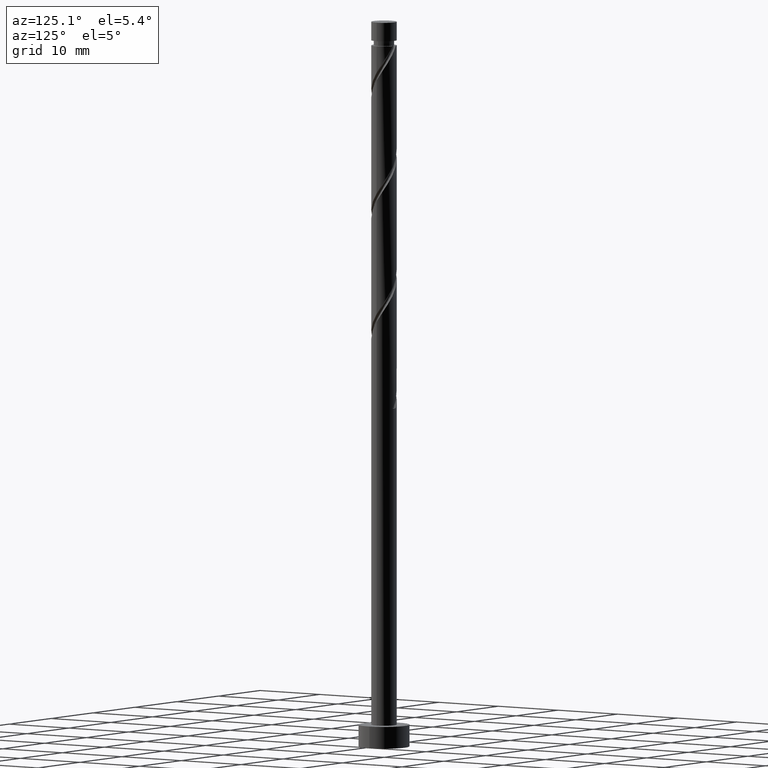
[diagram: clean part render]
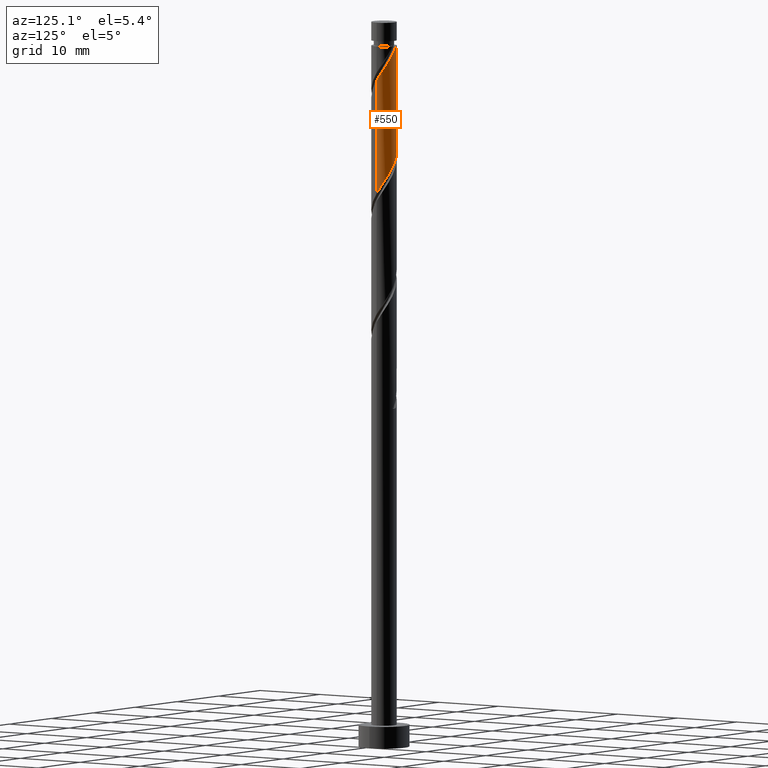
[diagram: same view with one face highlighted and labeled with its STEP entity id]
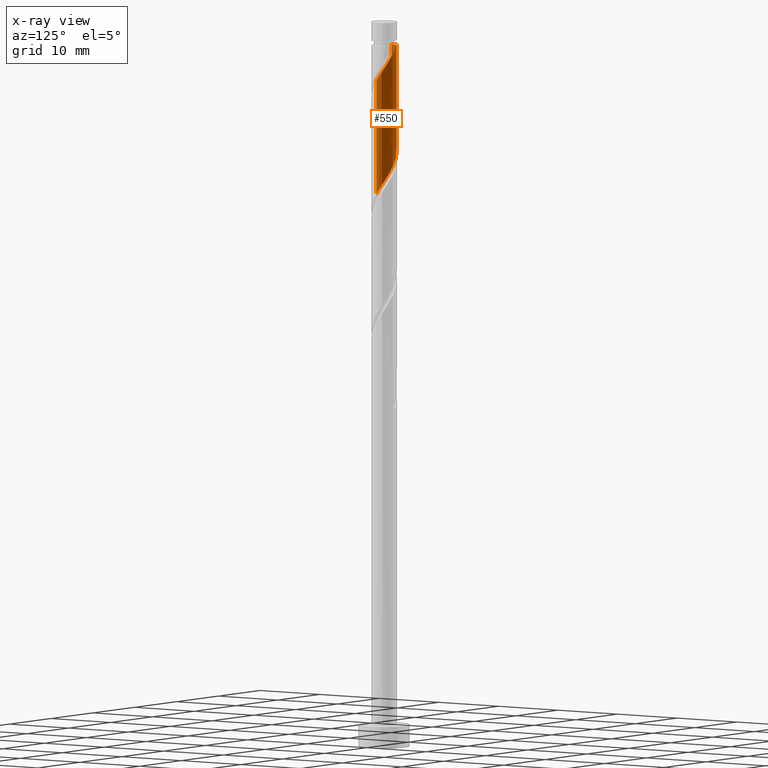
[diagram: x-ray of the same camera — body ghosted, the highlighted face saturated]
A machine part, auxiliary view. The second image highlights one B-rep face of the part: STEP entity #550.
The next image is the same camera in x-ray: the body ghosted, the highlighted face saturated — about 0% of this face is hidden behind the body in this view.
In plain terms, the highlighted cylindrical surface (edge-blend (fillet) strip) has radius 1.75 mm, axis along (-0, -0, -1).
Its self-contained STEP definition (entity closure, byte-faithful):
#6 =( BOUNDED_CURVE ( )  B_SPLINE_CURVE ( 2, ( #624, #1072, #43, #380, #847, #738, #1086, #160, #747, #55, #546, #516, #207, #1236, #1457, #778, #1002, #93, #884, #665, #787 ),
 .UNSPECIFIED., .F., .T. ) 
 B_SPLINE_CURVE_WITH_KNOTS ( ( 3, 2, 2, 2, 2, 2, 2, 2, 2, 2, 3 ),
 ( 0.4295248053855288406, 0.4305555555555555802, 0.4444444444444444198, 0.4583333333333333148, 0.4722222222222222099, 0.4861111111111111049, 0.5000000000000000000, 0.5138888888888888395, 0.5277777777777777901, 0.5416666666666666297, 0.5545248053855290626 ),
 .UNSPECIFIED. ) 
 CURVE ( )  GEOMETRIC_REPRESENTATION_ITEM ( )  RATIONAL_B_SPLINE_CURVE ( ( 0.9071930855141207006, 0.9080659294509685342, 0.9090909090909088386, 0.8952797754656434126, 0.9090909090909088386, 0.8952797754656434126, 0.9090909090909088386, 0.8952797754656434126, 0.9090909090909088386, 0.8952797754656434126, 0.9090909090909088386, 0.8952797754656434126, 0.9090909090909088386, 0.8952797754656434126, 0.9090909090909088386, 0.8952797754656434126, 0.9090909090909088386, 0.8952797754656434126, 0.9090909090909088386, 0.8963047551055834949, 0.9071930855141210337 ) ) 
 REPRESENTATION_ITEM ( '' )  );
#43 = CARTESIAN_POINT ( 'NONE',  ( -1.749417510755205463, 0.04514834507553568133, 84.70734473198508852 ) ) ;
#49 = AXIS2_PLACEMENT_3D ( 'NONE', #1207, #1441, #271 ) ;
#55 = CARTESIAN_POINT ( 'NONE',  ( -0.5644862759827014020, 1.684954615668426081, 81.46660399124436935 ) ) ;
#93 = CARTESIAN_POINT ( 'NONE',  ( 1.561334355841582866, 0.8484997595190588715, 77.76290028754068828 ) ) ;
#103 = CARTESIAN_POINT ( 'NONE',  ( 1.311110765996656102, 1.159089538943248510, 93.96660399124438356 ) ) ;
#111 = ORIENTED_EDGE ( 'NONE', *, *, #1158, .F. ) ;
#119 = EDGE_CURVE ( 'NONE', #226, #1136, #1174, .T. ) ;
#138 = ORIENTED_EDGE ( 'NONE', *, *, #296, .T. ) ;
#152 = CARTESIAN_POINT ( 'NONE',  ( -1.749999999999999778, -1.000910758641883447E-15, 84.77523665734425151 ) ) ;
#159 = EDGE_LOOP ( 'NONE', ( #896, #494, #111, #535, #138 ) ) ;
#160 = CARTESIAN_POINT ( 'NONE',  ( -1.106732007224024539, 1.390273741685799092, 82.39252991717030739 ) ) ;
#162 = AXIS2_PLACEMENT_3D ( 'NONE', #789, #549, #660 ) ;
#207 = CARTESIAN_POINT ( 'NONE',  ( 0.3482456029873174930, 1.715000000000000080, 80.07771510235548362 ) ) ;
#222 = DIRECTION ( 'NONE',  ( -0.000000000000000000, -0.000000000000000000, -1.000000000000000000 ) ) ;
#226 = VERTEX_POINT ( 'NONE', #485 ) ;
#235 = CARTESIAN_POINT ( 'NONE',  ( -0.3482456029873166603, 1.715000000000000524, 96.74438176902219766 ) ) ;
#270 = CARTESIAN_POINT ( 'NONE',  ( 1.750000000000002442, 9.822370504582602460E-16, 92.04686021403342977 ) ) ;
#271 = DIRECTION ( 'NONE',  ( -1.000000000000000000, 0.000000000000000000, 0.000000000000000000 ) ) ;
#293 = CARTESIAN_POINT ( 'NONE',  ( 1.749417510755208127, 0.04514834507553546622, 92.11475213939255013 ) ) ;
#296 = EDGE_CURVE ( 'NONE', #226, #1278, #1125, .T. ) ;
#380 = CARTESIAN_POINT ( 'NONE',  ( -1.741456639384053151, 0.3536178527455197118, 84.24438176902214082 ) ) ;
#441 = EDGE_CURVE ( 'NONE', #1146, #1278, #1299, .T. ) ;
#485 = CARTESIAN_POINT ( 'NONE',  ( -1.750000000000000444, 0.000000000000000000, 96.74438176902215503 ) ) ;
#494 = ORIENTED_EDGE ( 'NONE', *, *, #962, .T. ) ;
#516 = CARTESIAN_POINT ( 'NONE',  ( 0.04584483107229955084, 1.776405095719752136, 80.54067806531844553 ) ) ;
#524 = CARTESIAN_POINT ( 'NONE',  ( 1.628473082076670631, 0.6407615944731066548, 93.04067806531844553 ) ) ;
#533 = FACE_OUTER_BOUND ( 'NONE', #159, .T. ) ;
#535 = ORIENTED_EDGE ( 'NONE', *, *, #119, .F. ) ;
#546 = CARTESIAN_POINT ( 'NONE',  ( -0.2593207224552009915, 1.730679855694088776, 81.00364102828142165 ) ) ;
#549 = DIRECTION ( 'NONE',  ( -0.000000000000000000, -0.000000000000000000, -1.000000000000000000 ) ) ;
#550 = ADVANCED_FACE ( 'NONE', ( #533 ), #894, .T. ) ;
#593 = VECTOR ( 'NONE', #222, 1000.000000000000000 ) ;
#624 = CARTESIAN_POINT ( 'NONE',  ( -1.749999999999999556, -1.000910758641883644E-15, 84.77523665734425151 ) ) ;
#660 = DIRECTION ( 'NONE',  ( -1.000000000000000000, 0.000000000000000000, 0.000000000000000000 ) ) ;
#665 = CARTESIAN_POINT ( 'NONE',  ( 1.750000000000000444, 0.2853451506857981879, 76.87182283637650926 ) ) ;
#713 = CARTESIAN_POINT ( 'NONE',  ( -1.750000000000000000, 0.000000000000000000, 100.0000000000000000 ) ) ;
#738 = CARTESIAN_POINT ( 'NONE',  ( -1.515489524769282781, 0.9279053362006941530, 83.31845584309621700 ) ) ;
#747 = CARTESIAN_POINT ( 'NONE',  ( -0.8356091416033628594, 1.537614178677112475, 81.92956695420733126 ) ) ;
#757 = CARTESIAN_POINT ( 'NONE',  ( 1.741456639384054927, 0.3536178527455195453, 92.57771510235548362 ) ) ;
#772 = CARTESIAN_POINT ( 'NONE',  ( -0.04584483107229930798, 1.776405095719754357, 96.28141880605919312 ) ) ;
#778 = CARTESIAN_POINT ( 'NONE',  ( 1.176970363401352193, 1.331336762922905370, 78.68882621346658368 ) ) ;
#780 = CARTESIAN_POINT ( 'NONE',  ( 0.2593207224552029344, 1.730679855694091218, 95.81845584309624542 ) ) ;
#787 = CARTESIAN_POINT ( 'NONE',  ( 1.749999999999999778, 1.830023401994488252E-16, 76.44190332401089449 ) ) ;
#789 = CARTESIAN_POINT ( 'NONE',  ( 0.000000000000000000, 0.000000000000000000, 100.0000000000000000 ) ) ;
#803 = CARTESIAN_POINT ( 'NONE',  ( 1.515489524769286112, 0.9279053362006939309, 93.50364102828139323 ) ) ;
#847 = CARTESIAN_POINT ( 'NONE',  ( -1.628473082076667966, 0.6407615944731067659, 83.78141880605919312 ) ) ;
#849 = CARTESIAN_POINT ( 'NONE',  ( 1.750000000000002442, 0.02257793008104334517, 92.08087758796578726 ) ) ;
#884 = CARTESIAN_POINT ( 'NONE',  ( 1.659356368983970764, 0.5559104610567537907, 77.29993732457771216 ) ) ;
#887 = CARTESIAN_POINT ( 'NONE',  ( 1.106732007224026537, 1.390273741685800868, 94.42956695420731705 ) ) ;
#894 = CYLINDRICAL_SURFACE ( 'NONE', #162, 1.750000000000000000 ) ;
#896 = ORIENTED_EDGE ( 'NONE', *, *, #441, .F. ) ;
#916 = CARTESIAN_POINT ( 'NONE',  ( 1.750000000000000000, 2.143131898507867804E-16, 100.0000000000000000 ) ) ;
#934 = DIRECTION ( 'NONE',  ( -0.000000000000000000, -0.000000000000000000, -1.000000000000000000 ) ) ;
#944 = LINE ( 'NONE', #916, #593 ) ;
#962 = EDGE_CURVE ( 'NONE', #1146, #1462, #944, .T. ) ;
#986 = VECTOR ( 'NONE', #934, 1000.000000000000000 ) ;
#1002 = CARTESIAN_POINT ( 'NONE',  ( 1.369152359621467419, 1.089918261220981677, 78.22586325050363598 ) ) ;
#1072 = CARTESIAN_POINT ( 'NONE',  ( -1.750000000000000000, 0.02257793008103158375, 84.74121928341186560 ) ) ;
#1086 = CARTESIAN_POINT ( 'NONE',  ( -1.311110765996653438, 1.159089538943246733, 82.85549288013325508 ) ) ;
#1094 = CARTESIAN_POINT ( 'NONE',  ( 1.750000000000002442, 9.822370504582602460E-16, 92.04686021403342977 ) ) ;
#1112 = CARTESIAN_POINT ( 'NONE',  ( 0.5644862759827036225, 1.684954615668427413, 95.35549288013324087 ) ) ;
#1125 = CIRCLE ( 'NONE', #49, 1.750000000000000222 ) ;
#1136 = VERTEX_POINT ( 'NONE', #152 ) ;
#1146 = VERTEX_POINT ( 'NONE', #270 ) ;
#1158 = EDGE_CURVE ( 'NONE', #1136, #1462, #6, .T. ) ;
#1174 = LINE ( 'NONE', #713, #986 ) ;
#1207 = CARTESIAN_POINT ( 'NONE',  ( 0.000000000000000000, 0.000000000000000000, 96.74438176902215503 ) ) ;
#1236 = CARTESIAN_POINT ( 'NONE',  ( 0.6506463749023345677, 1.653594904280247802, 79.61475213939250750 ) ) ;
#1278 = VERTEX_POINT ( 'NONE', #235 ) ;
#1299 =( BOUNDED_CURVE ( )  B_SPLINE_CURVE ( 2, ( #1094, #849, #293, #757, #524, #803, #103, #887, #1461, #1112, #780, #772, #1353 ),
 .UNSPECIFIED., .F., .T. ) 
 B_SPLINE_CURVE_WITH_KNOTS ( ( 3, 2, 2, 2, 2, 2, 3 ),
 ( 0.6795248053855293957, 0.6805555555555555802, 0.6944444444444444198, 0.7083333333333332593, 0.7222222222222222099, 0.7361111111111111605, 0.7500000000000000000 ),
 .UNSPECIFIED. ) 
 CURVE ( )  GEOMETRIC_REPRESENTATION_ITEM ( )  RATIONAL_B_SPLINE_CURVE ( ( 0.9071930855141271399, 0.9080659294509745294, 0.9090909090909143897, 0.8952797754656489637, 0.9090909090909143897, 0.8952797754656489637, 0.9090909090909143897, 0.8952797754656489637, 0.9090909090909143897, 0.8952797754656489637, 0.9090909090909143897, 0.8952797754656489637, 0.9090909090909143897 ) ) 
 REPRESENTATION_ITEM ( '' )  );
#1312 = CARTESIAN_POINT ( 'NONE',  ( 1.750000000000000000, 1.830023401994488252E-16, 76.44190332401089449 ) ) ;
#1353 = CARTESIAN_POINT ( 'NONE',  ( -0.3482456029873167158, 1.715000000000000746, 96.74438176902219766 ) ) ;
#1441 = DIRECTION ( 'NONE',  ( -0.000000000000000000, -0.000000000000000000, -1.000000000000000000 ) ) ;
#1457 = CARTESIAN_POINT ( 'NONE',  ( 0.9138083691518438245, 1.492465833601576364, 79.15178917642954559 ) ) ;
#1461 = CARTESIAN_POINT ( 'NONE',  ( 0.8356091416033648578, 1.537614178677114474, 94.89252991717032160 ) ) ;
#1462 = VERTEX_POINT ( 'NONE', #1312 ) ;